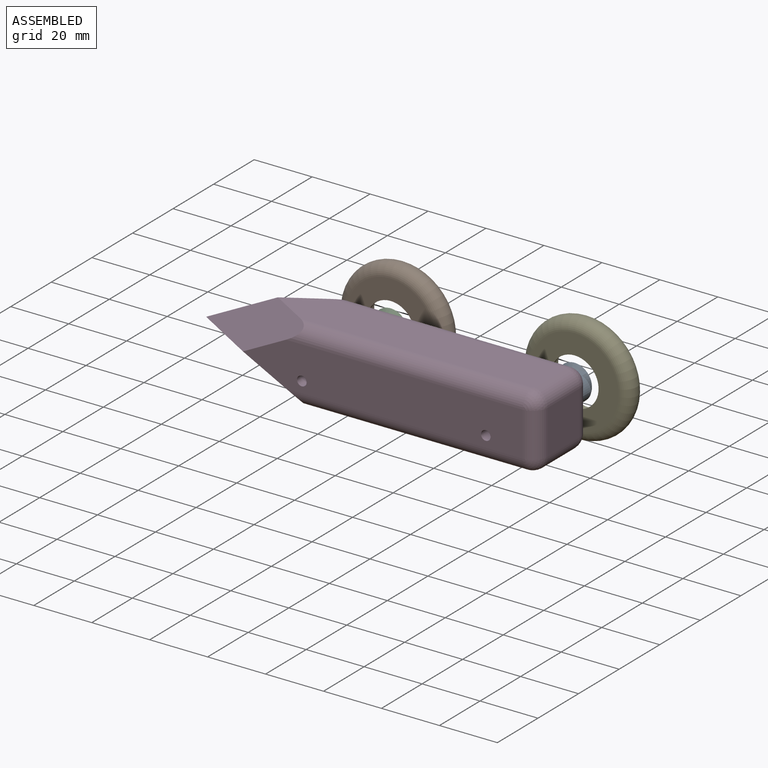
[diagram: assembled view]
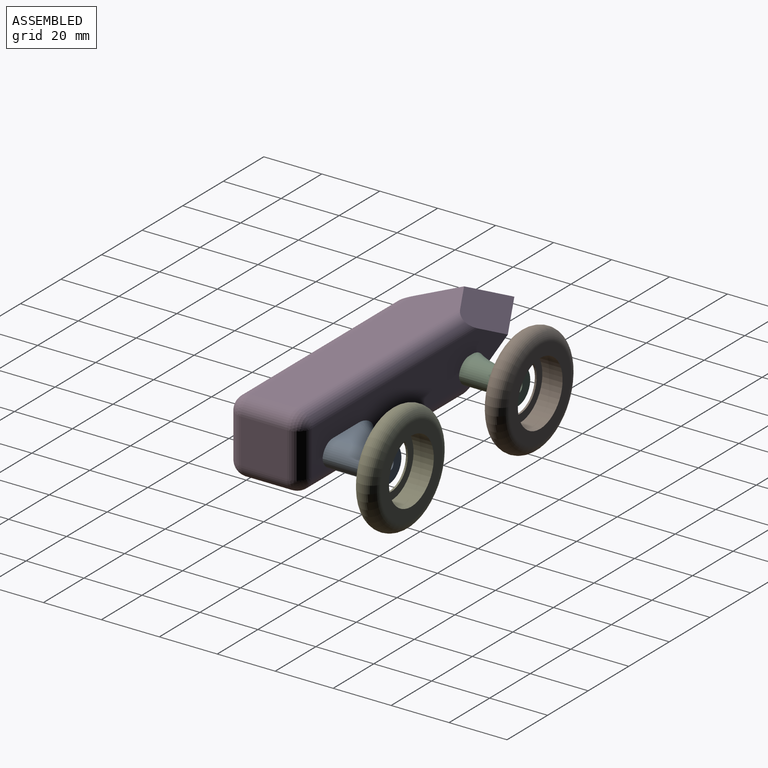
[diagram: assembled view, second angle]
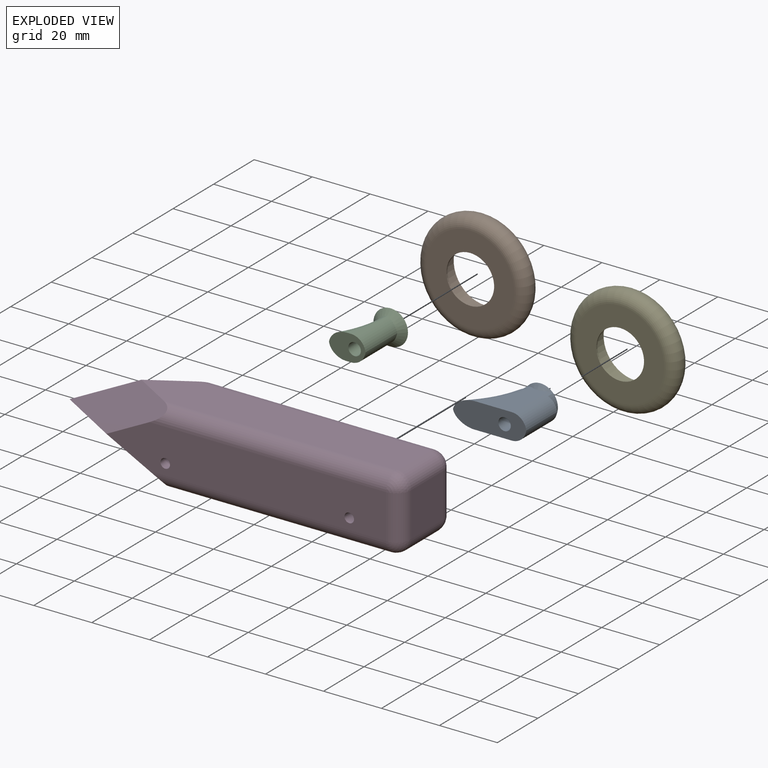
[diagram: exploded view]
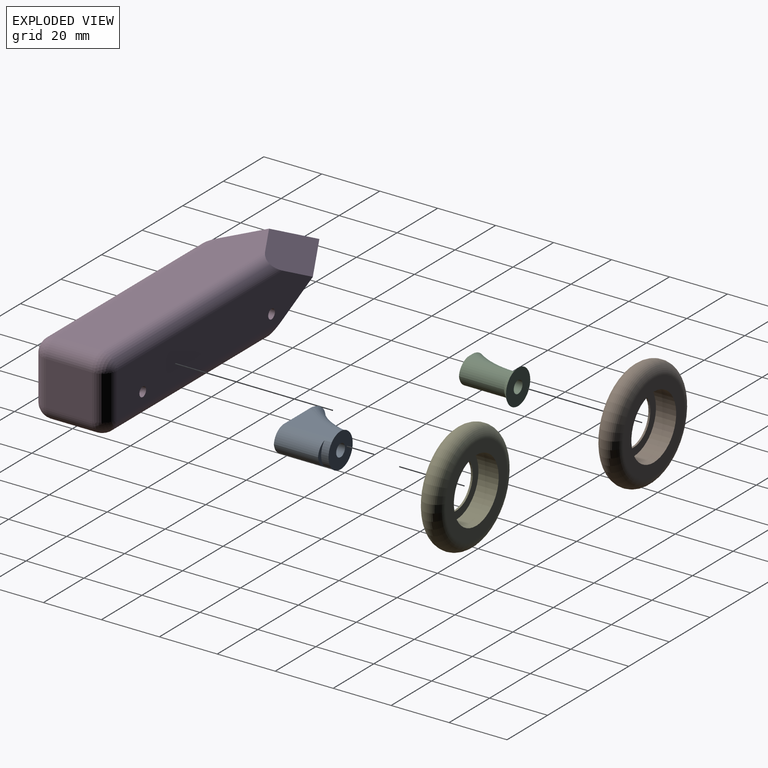
[diagram: exploded view, second angle]
ASSEMBLY  parts=5 mates=4
PART A: 15 faces, bbox 25.5x12.2x27.7 mm
  f0: cylinder r=5.97mm len=8.22mm, axis (0,0,-1), area 21.7mm2, adj f1,f8,f9,f11
  f1: plane 8.46x3.56mm, normal (0,0,1), area 9.6mm2, adj f0,f8,f9
  f2: plane 25.3x8.89mm, normal (0,0,-1), area 182.7mm2, adj f4,f5,f6,f7,f8,f9,f14
  f3: plane 8.17x3.16mm, normal (0,0,1), area 8.8mm2, adj f6,f7,f10
  f4: plane 16.9x12.79mm, normal (0,-1,0), area 127.9mm2, adj f2,f6,f8,f13
  f5: plane 16.9x12.79mm, normal (0,1,0), area 127.9mm2, adj f2,f7,f9,f12
  f6: cylinder r=5.08mm len=17.78mm, axis (0,0,-1), area 116mm2, adj f2,f3,f4,f7,f10,f13
  f7: cylinder r=5.08mm len=17.78mm, axis (0,0,1), area 116mm2, adj f2,f3,f5,f6,f10,f12
  f8: torus R=32.61mm, axis (0,-1,0), area 137.6mm2, adj f0,f1,f2,f4,f9,f13
  f9: torus R=32.61mm, axis (0,-1,0), area 137.6mm2, adj f0,f1,f2,f5,f8,f12
  f10: cylinder r=5.97mm len=8.17mm, axis (0,0,-1), area 22.8mm2, adj f3,f6,f7,f11
  f11: plane 11.94x11.94mm, normal (0,0,1), area 97.3mm2, adj f0,f10,f12,f13,f14
  f12: cone r=5.97mm half-angle=45deg, axis (0,0,1), area 12.5mm2, adj f5,f7,f9,f11
  f13: cone r=5.97mm half-angle=45deg, axis (0,0,1), area 12.5mm2, adj f4,f6,f8,f11
  f14: cylinder r=2.16mm len=17.78mm, axis (0,0,1), area 241.2mm2, adj f2,f11
PART B: 6 faces, bbox 41.2x7.6x41.2 mm
  f0: plane 30.48x30.48mm, normal (0,-1,0), area 346.1mm2, adj f2,f5
  f1: plane 30.48x30.48mm, normal (0,1,0), area 515.6mm2, adj f4,f5
  f2: cylinder r=11.05mm len=22.1mm, axis (0,-1,0), area 484.9mm2, adj f0,f3
  f3: plane 22.1x22.1mm, normal (0,-1,0), area 169.4mm2, adj f2,f4
  f4: cylinder r=8.26mm len=16.51mm, axis (0,-1,0), area 32.9mm2, adj f1,f3
  f5: torus R=15.24mm, axis (0,-1,0), area 1328.6mm2, adj f0,f1
PART C: 10 faces, bbox 16.7x11.9x24.5 mm
  f0: plane 12.62x8.89mm, normal (0,0,-1), area 73.9mm2, adj f1,f2,f3,f4,f5,f6,f9
  f1: plane 3.31x1.62mm, normal (0,-1,0), area 2.5mm2, adj f0,f3,f4
  f2: plane 3.31x1.62mm, normal (0,1,0), area 2.5mm2, adj f0,f5,f6
  f3: torus R=32.61mm, axis (0,-1,0), area 110.9mm2, adj f0,f1,f4,f5,f8
  f4: cylinder r=5.08mm len=16.09mm, axis (0,0,-1), area 104.4mm2, adj f0,f1,f3,f6,f8
  f5: torus R=32.61mm, axis (0,-1,0), area 110.9mm2, adj f0,f2,f3,f6,f8
  f6: cylinder r=5.08mm len=16.09mm, axis (0,0,1), area 104.4mm2, adj f0,f2,f4,f5,f8
  f7: plane 11.94x11.94mm, normal (0,0,1), area 97.3mm2, adj f8,f9
  f8: cone r=5.97mm half-angle=45deg, axis (0,0,1), area 93.5mm2, adj f3,f4,f5,f6,f7
  f9: cylinder r=2.16mm len=17.78mm, axis (0,0,1), area 241.2mm2, adj f0,f7
PART D: 23 faces, bbox 123.4x25.4x26 mm
  f0: plane 96.52x15.24mm, normal (0,0,1), area 1340.5mm2, adj f6,f8,f9,f13,f14,f21,f22
  f1: plane 96.52x15.24mm, normal (0,0,-1), area 1340.5mm2, adj f5,f7,f11,f17,f20,f21,f22
  f2: plane 15.86x15.24mm, normal (1,0,0), area 241.8mm2, adj f12,f13,f17,f18
  f3: plane 93.54x15.86mm, normal (0,-1,0), area 1378.5mm2, adj f7,f8,f9,f11,f12
  f4: plane 93.54x15.86mm, normal (0,1,0), area 1378.5mm2, adj f5,f6,f14,f18,f20
  f5: plane 41.24x13.01mm, normal (-0.36,0.71,-0.61), area 440.9mm2, adj f1,f4,f6,f7,f20
  f6: plane 41.24x13.01mm, normal (-0.36,0.71,0.61), area 440.9mm2, adj f0,f4,f5,f8,f14
  f7: plane 41.24x13.01mm, normal (-0.36,-0.71,-0.61), area 440.9mm2, adj f1,f3,f5,f8,f11
  f8: plane 41.24x13.01mm, normal (-0.36,-0.71,0.61), area 440.9mm2, adj f0,f3,f6,f7,f9
  f9: cylinder r=5.08mm len=81.65mm, axis (1,0,0), area 625.8mm2, adj f0,f3,f8,f10
  f10: sphere r=5.08mm, area 40.5mm2, adj f9,f12,f13
  f11: cylinder r=5.08mm len=81.65mm, axis (-1,0,0), area 625.8mm2, adj f1,f3,f7,f15
  f12: cylinder r=5.08mm len=15.86mm, axis (0,0,-1), area 126.6mm2, adj f2,f3,f10,f15
  f13: cylinder r=5.08mm len=15.24mm, axis (0,-1,0), area 121.6mm2, adj f0,f2,f10,f16
  f14: cylinder r=5.08mm len=81.65mm, axis (-1,0,0), area 625.8mm2, adj f0,f4,f6,f16
  f15: sphere r=5.08mm, area 40.5mm2, adj f11,f12,f17
  f16: sphere r=5.08mm, area 40.5mm2, adj f13,f14,f18
  f17: cylinder r=5.08mm len=15.24mm, axis (0,1,0), area 121.6mm2, adj f1,f2,f15,f19
  f18: cylinder r=5.08mm len=15.86mm, axis (0,0,1), area 126.6mm2, adj f2,f4,f16,f19
  f19: sphere r=5.08mm, area 40.5mm2, adj f17,f18,f20
  f20: cylinder r=5.08mm len=81.65mm, axis (1,0,0), area 625.8mm2, adj f1,f4,f5,f19
  f21: cylinder r=1.65mm len=26.02mm, axis (0,0,1), area 270mm2, adj f0,f1
  f22: cylinder r=1.65mm len=26.02mm, axis (0,0,1), area 270mm2, adj f0,f1
PART E: same geometry as B
PLACE A rot(axis=(-1,0,0),90deg) t=(52.98,-4.62,-2.33)mm
PLACE B rot(axis=(1,0,0),180deg) t=(-18.07,13.16,2.11)mm
PLACE C rot(axis=(-1,0,0),90deg) t=(-14.26,-4.62,-2.33)mm
PLACE D rot(axis=(1,0,0),90deg) t=(-38.39,-17.63,18.62)mm
PLACE E rot(axis=(1,0,0),180deg) t=(45.43,13.16,2.11)mm
MATE fastened C.f8 <-> D.f22  axis (0,-1,0) through (-18.07,-4.62,2.11)mm
MATE fastened B.f4 <-> C.f8  axis (0,-1,0) through (-18.07,13.16,2.11)mm
MATE fastened E.f4 <-> A.f0  axis (0,-1,0) through (45.43,13.16,2.11)mm
MATE fastened A.f0 <-> D.f21  axis (0,-1,0) through (45.43,-4.62,2.11)mm
